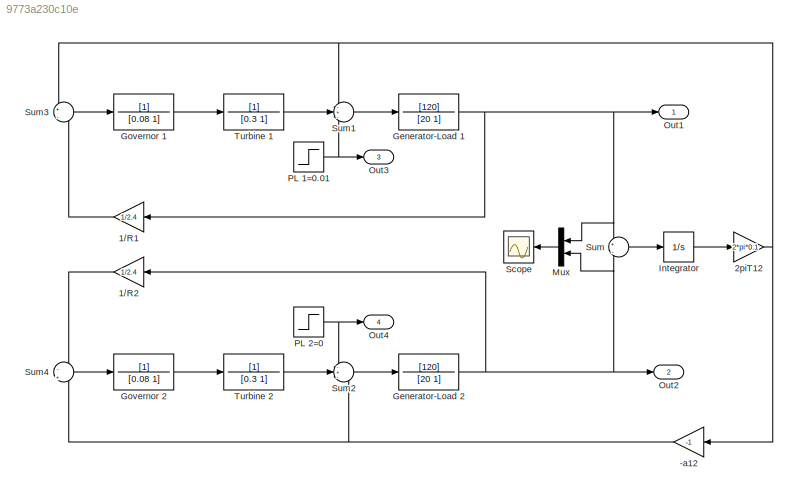
MODEL slx_9773a230c10e
KIND model
BLOCK [Gain] -a12
  Gain = -1
  OutDataTypeStr = Inherit: Inherit via internal rule
  ParamDataTypeStr = Inherit: Inherit via internal rule
  SaturateOnIntegerOverflow = off
BLOCK [Gain] 1//R1
  Gain = 1/2.4
  OutDataTypeStr = Inherit: Inherit via internal rule
  ParamDataTypeStr = Inherit: Inherit via internal rule
  SaturateOnIntegerOverflow = off
BLOCK [Gain] 1//R2
  Gain = 1/2.4
  OutDataTypeStr = Inherit: Inherit via internal rule
  ParamDataTypeStr = Inherit: Inherit via internal rule
  SaturateOnIntegerOverflow = off
BLOCK [Gain] 2piT12
  Gain = 2*pi*0.1
  OutDataTypeStr = Inherit: Inherit via internal rule
  ParamDataTypeStr = Inherit: Inherit via internal rule
  SaturateOnIntegerOverflow = off
BLOCK [TransferFcn] Generator-Load 1
  Denominator = [20 1]
  Numerator = [120]
BLOCK [TransferFcn] Generator-Load 2
  Denominator = [20 1]
  Numerator = [120]
BLOCK [TransferFcn] Governor 1
  Denominator = [0.08 1]
BLOCK [TransferFcn] Governor 2
  Denominator = [0.08 1]
BLOCK [Integrator] Integrator
  Ports = [1, 1]
BLOCK [Mux] Mux
  DisplayOption = bar
  Inputs = 2
  Ports = [2, 1]
BLOCK [Outport] Out1
  IconDisplay = Port number
BLOCK [Outport] Out2
  IconDisplay = Port number
  Port = 2
BLOCK [Outport] Out3
  IconDisplay = Port number
  Port = 3
BLOCK [Outport] Out4
  IconDisplay = Port number
  Port = 4
BLOCK [Step] PL 1=0.01
  After = 0.01
  SampleTime = 0
BLOCK [Step] PL 2=0
  After = 0
  SampleTime = 0
BLOCK [Scope] Scope
  Floating = off
  NumInputPorts = 1
  Ports = [1]
  ShowLegends = off
BLOCK [Sum] Sum
  IconShape = round
  InputSameDT = off
  Inputs = +|-
  OutDataTypeStr = Inherit: Inherit via internal rule
  Ports = [2, 1]
  SaturateOnIntegerOverflow = off
BLOCK [Sum] Sum1
  IconShape = round
  InputSameDT = off
  Inputs = -+-
  OutDataTypeStr = Inherit: Inherit via internal rule
  Ports = [3, 1]
  SaturateOnIntegerOverflow = off
BLOCK [Sum] Sum2
  IconShape = round
  InputSameDT = off
  Inputs = -+-
  OutDataTypeStr = Inherit: Inherit via internal rule
  Ports = [3, 1]
  SaturateOnIntegerOverflow = off
BLOCK [Sum] Sum3
  IconShape = round
  InputSameDT = off
  Inputs = +|-
  OutDataTypeStr = Inherit: Inherit via internal rule
  Ports = [2, 1]
  SaturateOnIntegerOverflow = off
BLOCK [Sum] Sum4
  IconShape = round
  InputSameDT = off
  Inputs = -|+
  OutDataTypeStr = Inherit: Inherit via internal rule
  Ports = [2, 1]
  SaturateOnIntegerOverflow = off
BLOCK [TransferFcn] Turbine 1
  Denominator = [0.3 1]
BLOCK [TransferFcn] Turbine 2
  Denominator = [0.3 1]
NET -a12:1 -> Sum2:3, Sum4:2
LINE 1//R1:1 -> Sum3:2
LINE 1//R2:1 -> Sum4:1
NET 2piT12:1 -> -a12:1, Sum1:1, Sum3:1
NET Generator-Load 1:1 -> 1//R1:1, Mux:1, Out1:1, Sum:1
NET Generator-Load 2:1 -> 1//R2:1, Mux:2, Out2:1, Sum:2
LINE Governor 1:1 -> Turbine 1:1
LINE Governor 2:1 -> Turbine 2:1
LINE Integrator:1 -> 2piT12:1
LINE Mux:1 -> Scope:1
NET PL 1=0.01:1 -> Out3:1, Sum1:3
NET PL 2=0:1 -> Out4:1, Sum2:1
LINE Sum1:1 -> Generator-Load 1:1
LINE Sum2:1 -> Generator-Load 2:1
LINE Sum3:1 -> Governor 1:1
LINE Sum4:1 -> Governor 2:1
LINE Sum:1 -> Integrator:1
LINE Turbine 1:1 -> Sum1:2
LINE Turbine 2:1 -> Sum2:2
note: NET lines group one-source signal fan-out (src -> all destinations, sorted); 1:1 wires keep LINE
